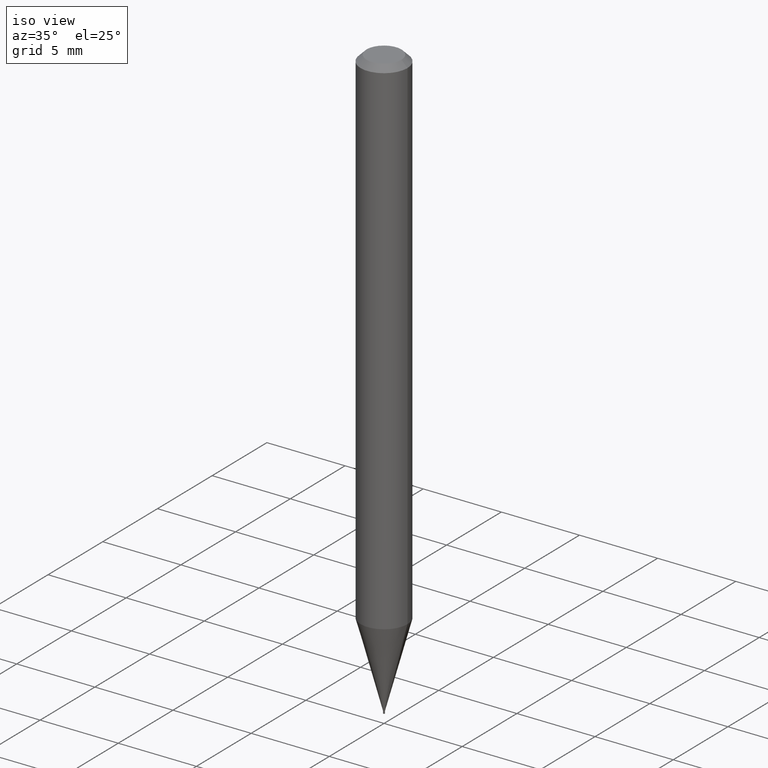
[diagram: clean part render]
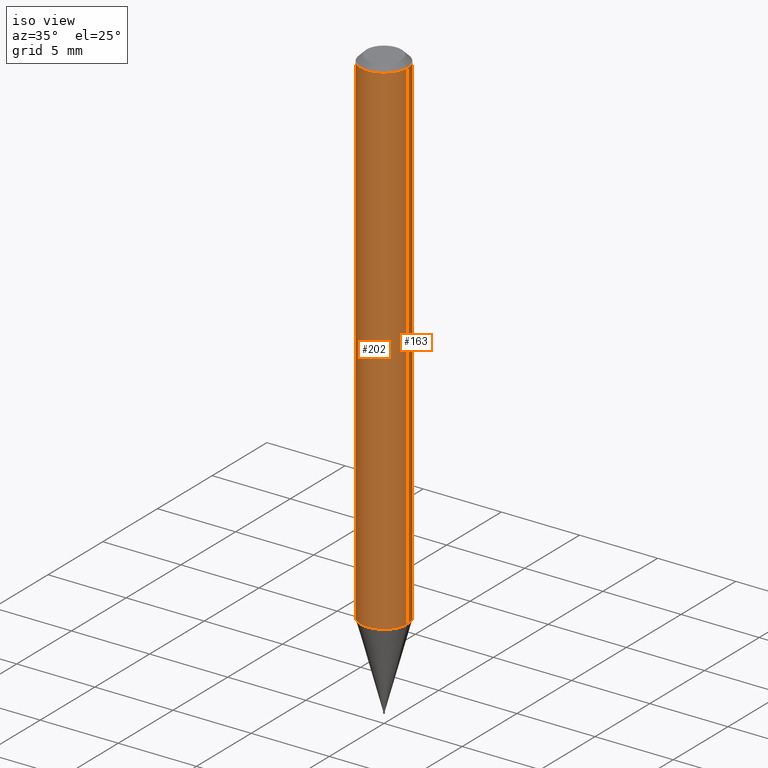
[diagram: same view with one multi-face feature highlighted, each face labeled with its STEP entity id]
A machine part, iso view. The highlighted faces form ONE feature: a constant-radius fillet chain: 2 tangent blend faces with common blend radius 1.4999 mm. The faces share edges in the B-rep.
Their STEP definitions:
[1] entity #202 (Cylinder):
#15 = CARTESIAN_POINT ( 'NONE',  ( 3.132645293456470414E-29, -4.472587242026769909E-15, -1.280999898887817068 ) ) ;
#42 = EDGE_CURVE ( 'NONE', #189, #252, #188, .T. ) ;
#54 = VERTEX_POINT ( 'NONE', #73 ) ;
#73 = CARTESIAN_POINT ( 'NONE',  ( 0.05905000000000000526, -4.884931188144144829E-15, -1.280999898887817068 ) ) ;
#80 = EDGE_CURVE ( 'NONE', #252, #343, #123, .T. ) ;
#91 = DIRECTION ( 'NONE',  ( -2.445468806185136877E-29, 3.491481338843145188E-15, 1.000000000000000000 ) ) ;
#110 = VECTOR ( 'NONE', #192, 39.37007874015748143 ) ;
#120 = DIRECTION ( 'NONE',  ( -2.445468806185136597E-29, 3.491481338843145583E-15, 1.000000000000000000 ) ) ;
#123 = CIRCLE ( 'NONE', #395, 0.05904999999999999832 ) ;
#135 = AXIS2_PLACEMENT_3D ( 'NONE', #15, #120, #229 ) ;
#145 = CIRCLE ( 'NONE', #135, 0.05904999999999999832 ) ;
#147 = CARTESIAN_POINT ( 'NONE',  ( -0.05904999999999999832, 4.195754854663391478E-16, -2.904631170795521892E-30 ) ) ;
#168 = LINE ( 'NONE', #276, #242 ) ;
#184 = EDGE_LOOP ( 'NONE', ( #281, #402, #436, #435 ) ) ;
#188 = LINE ( 'NONE', #147, #110 ) ;
#189 = VERTEX_POINT ( 'NONE', #456 ) ;
#192 = DIRECTION ( 'NONE',  ( -2.445468806185136877E-29, 3.491481338843145188E-15, 1.000000000000000000 ) ) ;
#193 = CARTESIAN_POINT ( 'NONE',  ( -0.05904999999999999832, -1.842904245588369593E-15, -0.01499999999999999944 ) ) ;
#196 = EDGE_CURVE ( 'NONE', #54, #343, #168, .T. ) ;
#198 = CARTESIAN_POINT ( 'NONE',  ( 3.668203209277705088E-31, -5.237222008264718399E-17, -0.01499999999999999944 ) ) ;
#202 = ADVANCED_FACE ( 'NONE', ( #304 ), #409, .T. ) ;
#204 = CARTESIAN_POINT ( 'NONE',  ( 0.000000000000000000, 0.000000000000000000, 0.000000000000000000 ) ) ;
#229 = DIRECTION ( 'NONE',  ( 1.000000000000000000, -6.982962677686273021E-15, 0.000000000000000000 ) ) ;
#242 = VECTOR ( 'NONE', #91, 39.37007874015748143 ) ;
#252 = VERTEX_POINT ( 'NONE', #193 ) ;
#276 = CARTESIAN_POINT ( 'NONE',  ( 0.05904999999999999832, -4.123439461173740327E-16, 2.879382386107500220E-30 ) ) ;
#281 = ORIENTED_EDGE ( 'NONE', *, *, #42, .F. ) ;
#304 = FACE_OUTER_BOUND ( 'NONE', #184, .T. ) ;
#307 = DIRECTION ( 'NONE',  ( -2.445468806185136597E-29, 3.491481338843145583E-15, 1.000000000000000000 ) ) ;
#321 = CARTESIAN_POINT ( 'NONE',  ( 0.05904999999999999832, -4.647161662000212105E-16, -0.01499999999999999944 ) ) ;
#338 = DIRECTION ( 'NONE',  ( 1.000000000000000000, -6.982962677686266711E-15, 0.000000000000000000 ) ) ;
#343 = VERTEX_POINT ( 'NONE', #321 ) ;
#395 = AXIS2_PLACEMENT_3D ( 'NONE', #198, #307, #338 ) ;
#402 = ORIENTED_EDGE ( 'NONE', *, *, #407, .T. ) ;
#407 = EDGE_CURVE ( 'NONE', #189, #54, #145, .T. ) ;
#409 = CYLINDRICAL_SURFACE ( 'NONE', #441, 0.05904999999999999832 ) ;
#414 = DIRECTION ( 'NONE',  ( 1.000000000000000000, -6.982962677686266711E-15, 4.876176775795936353E-29 ) ) ;
#435 = ORIENTED_EDGE ( 'NONE', *, *, #80, .F. ) ;
#436 = ORIENTED_EDGE ( 'NONE', *, *, #196, .T. ) ;
#441 = AXIS2_PLACEMENT_3D ( 'NONE', #204, #455, #414 ) ;
#455 = DIRECTION ( 'NONE',  ( -2.445468806185136597E-29, 3.491481338843145583E-15, 1.000000000000000000 ) ) ;
#456 = CARTESIAN_POINT ( 'NONE',  ( -0.05905000000000000526, -4.053011756560430416E-15, -1.280999898887817068 ) ) ;
[2] entity #163 (Cylinder):
#38 = CARTESIAN_POINT ( 'NONE',  ( 3.132645293456470414E-29, -4.472587242026769909E-15, -1.280999898887817068 ) ) ;
#40 = CIRCLE ( 'NONE', #255, 0.05904999999999999832 ) ;
#42 = EDGE_CURVE ( 'NONE', #189, #252, #188, .T. ) ;
#54 = VERTEX_POINT ( 'NONE', #73 ) ;
#59 = DIRECTION ( 'NONE',  ( -2.445468806185136597E-29, 3.491481338843145583E-15, 1.000000000000000000 ) ) ;
#73 = CARTESIAN_POINT ( 'NONE',  ( 0.05905000000000000526, -4.884931188144144829E-15, -1.280999898887817068 ) ) ;
#74 = ORIENTED_EDGE ( 'NONE', *, *, #280, .T. ) ;
#91 = DIRECTION ( 'NONE',  ( -2.445468806185136877E-29, 3.491481338843145188E-15, 1.000000000000000000 ) ) ;
#110 = VECTOR ( 'NONE', #192, 39.37007874015748143 ) ;
#115 = ORIENTED_EDGE ( 'NONE', *, *, #196, .F. ) ;
#142 = ORIENTED_EDGE ( 'NONE', *, *, #326, .F. ) ;
#144 = AXIS2_PLACEMENT_3D ( 'NONE', #203, #59, #197 ) ;
#147 = CARTESIAN_POINT ( 'NONE',  ( -0.05904999999999999832, 4.195754854663391478E-16, -2.904631170795521892E-30 ) ) ;
#150 = DIRECTION ( 'NONE',  ( 1.000000000000000000, -6.982962677686266711E-15, 0.000000000000000000 ) ) ;
#163 = ADVANCED_FACE ( 'NONE', ( #265 ), #300, .T. ) ;
#168 = LINE ( 'NONE', #276, #242 ) ;
#186 = CARTESIAN_POINT ( 'NONE',  ( 3.668203209277705088E-31, -5.237222008264718399E-17, -0.01499999999999999944 ) ) ;
#188 = LINE ( 'NONE', #147, #110 ) ;
#189 = VERTEX_POINT ( 'NONE', #456 ) ;
#192 = DIRECTION ( 'NONE',  ( -2.445468806185136877E-29, 3.491481338843145188E-15, 1.000000000000000000 ) ) ;
#193 = CARTESIAN_POINT ( 'NONE',  ( -0.05904999999999999832, -1.842904245588369593E-15, -0.01499999999999999944 ) ) ;
#196 = EDGE_CURVE ( 'NONE', #54, #343, #168, .T. ) ;
#197 = DIRECTION ( 'NONE',  ( 1.000000000000000000, -6.982962677686266711E-15, 4.876176775795936353E-29 ) ) ;
#203 = CARTESIAN_POINT ( 'NONE',  ( 0.000000000000000000, 0.000000000000000000, 0.000000000000000000 ) ) ;
#218 = EDGE_LOOP ( 'NONE', ( #74, #454, #142, #115 ) ) ;
#242 = VECTOR ( 'NONE', #91, 39.37007874015748143 ) ;
#251 = DIRECTION ( 'NONE',  ( -2.445468806185136597E-29, 3.491481338843145583E-15, 1.000000000000000000 ) ) ;
#252 = VERTEX_POINT ( 'NONE', #193 ) ;
#255 = AXIS2_PLACEMENT_3D ( 'NONE', #38, #251, #350 ) ;
#263 = AXIS2_PLACEMENT_3D ( 'NONE', #186, #331, #150 ) ;
#265 = FACE_OUTER_BOUND ( 'NONE', #218, .T. ) ;
#276 = CARTESIAN_POINT ( 'NONE',  ( 0.05904999999999999832, -4.123439461173740327E-16, 2.879382386107500220E-30 ) ) ;
#280 = EDGE_CURVE ( 'NONE', #54, #189, #40, .T. ) ;
#300 = CYLINDRICAL_SURFACE ( 'NONE', #144, 0.05904999999999999832 ) ;
#321 = CARTESIAN_POINT ( 'NONE',  ( 0.05904999999999999832, -4.647161662000212105E-16, -0.01499999999999999944 ) ) ;
#326 = EDGE_CURVE ( 'NONE', #343, #252, #459, .T. ) ;
#331 = DIRECTION ( 'NONE',  ( -2.445468806185136597E-29, 3.491481338843145583E-15, 1.000000000000000000 ) ) ;
#343 = VERTEX_POINT ( 'NONE', #321 ) ;
#350 = DIRECTION ( 'NONE',  ( 1.000000000000000000, -6.982962677686273021E-15, 0.000000000000000000 ) ) ;
#454 = ORIENTED_EDGE ( 'NONE', *, *, #42, .T. ) ;
#456 = CARTESIAN_POINT ( 'NONE',  ( -0.05905000000000000526, -4.053011756560430416E-15, -1.280999898887817068 ) ) ;
#459 = CIRCLE ( 'NONE', #263, 0.05904999999999999832 ) ;